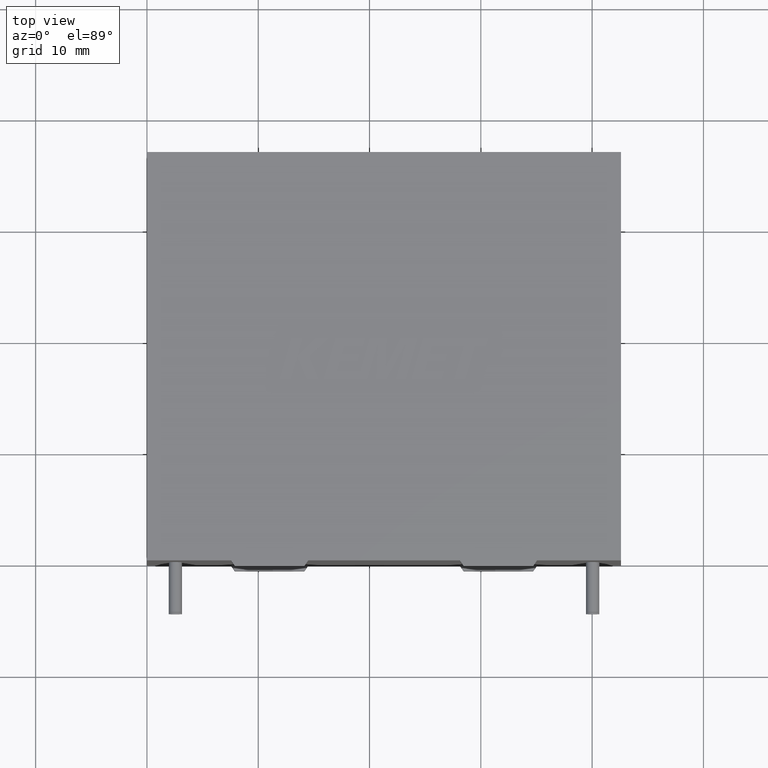
[diagram: clean part render]
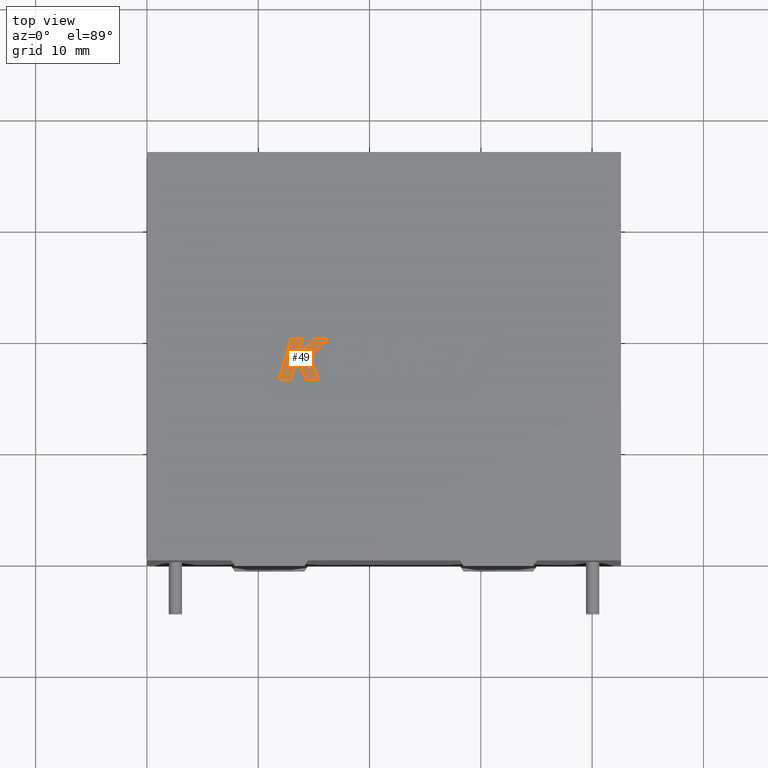
[diagram: same view with one face highlighted and labeled with its STEP entity id]
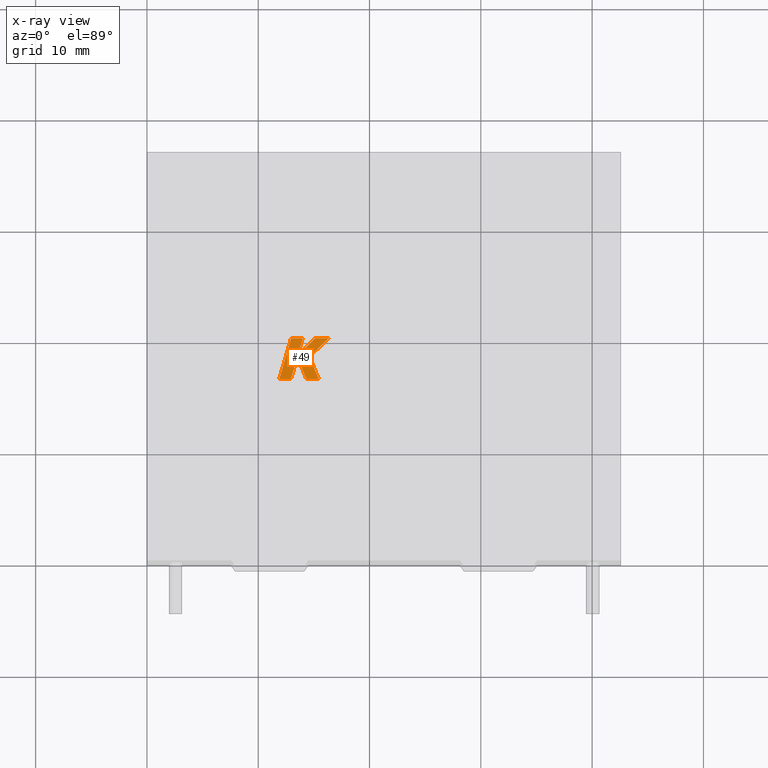
[diagram: x-ray of the same camera — body ghosted, the highlighted face saturated]
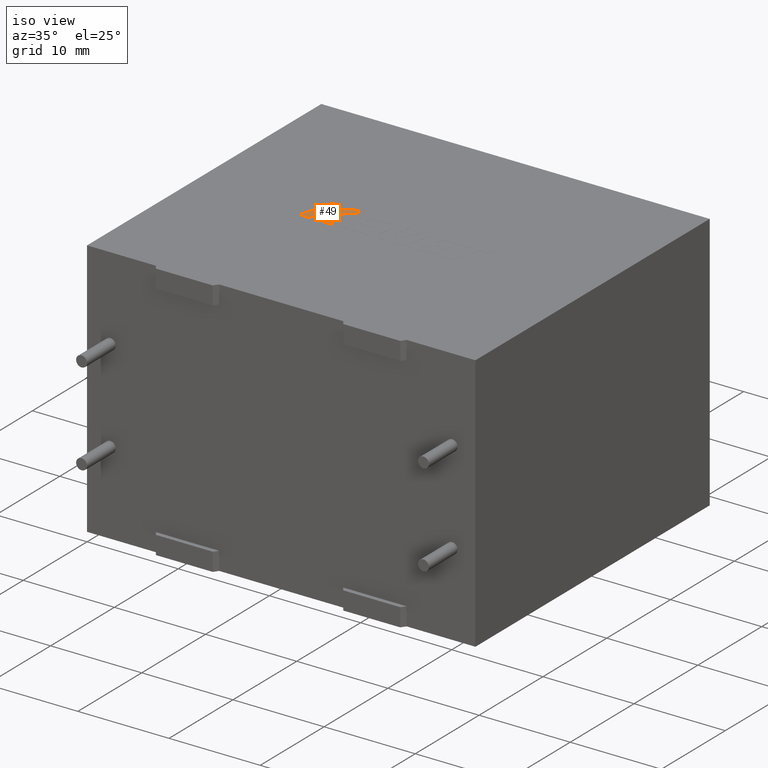
[diagram: same view with one face highlighted and labeled with its STEP entity id]
A machine part, top view. The second image highlights one B-rep face of the part: STEP entity #49.
The next image is the same camera in x-ray: the body ghosted, the highlighted face saturated — about 0% of this face is hidden behind the body in this view.
A second angle (iso view) of the same face is appended — the face is thin or edge-on in the first view.
In plain terms, the highlighted planar face has unit normal (0, 0, -1).
Its self-contained STEP definition (entity closure, byte-faithful):
#49 = ADVANCED_FACE ( 'NONE', ( #1874 ), #2974, .F. ) ;
#92 = VECTOR ( 'NONE', #2436, 1000.000000000000100 ) ;
#100 = ORIENTED_EDGE ( 'NONE', *, *, #203, .T. ) ;
#104 = LINE ( 'NONE', #2287, #3230 ) ;
#181 = CARTESIAN_POINT ( 'NONE',  ( 13.51438042692642400, 18.28540455250093900, 28.40500000000000100 ) ) ;
#189 = CARTESIAN_POINT ( 'NONE',  ( 14.60878642291253500, 18.28540455250098200, 28.40500000000000100 ) ) ;
#190 = DIRECTION ( 'NONE',  ( 1.000000000000000000, -1.065099224987545000E-013, 0.0000000000000000000 ) ) ;
#203 = EDGE_CURVE ( 'NONE', #1595, #1082, #1626, .T. ) ;
#224 = LINE ( 'NONE', #2475, #1966 ) ;
#264 = EDGE_CURVE ( 'NONE', #2233, #3308, #3332, .T. ) ;
#311 = EDGE_CURVE ( 'NONE', #2810, #2770, #1497, .T. ) ;
#355 = VECTOR ( 'NONE', #786, 1000.000000000000100 ) ;
#361 = CARTESIAN_POINT ( 'NONE',  ( 14.31708517982268500, 16.28562499999988600, 28.40500000000000100 ) ) ;
#382 = VERTEX_POINT ( 'NONE', #546 ) ;
#393 = EDGE_CURVE ( 'NONE', #1972, #1595, #1418, .T. ) ;
#421 = VECTOR ( 'NONE', #1534, 1000.000000000000000 ) ;
#436 = ORIENTED_EDGE ( 'NONE', *, *, #815, .T. ) ;
#546 = CARTESIAN_POINT ( 'NONE',  ( 11.89392000000000100, 16.28562500000000000, 28.40500000000000100 ) ) ;
#609 = VECTOR ( 'NONE', #1182, 1000.000000000000100 ) ;
#645 = VERTEX_POINT ( 'NONE', #189 ) ;
#668 = DIRECTION ( 'NONE',  ( -1.000000000000000000, 0.0000000000000000000, 0.0000000000000000000 ) ) ;
#673 = LINE ( 'NONE', #2052, #355 ) ;
#786 = DIRECTION ( 'NONE',  ( 0.2755265765475175500, 0.9612934544747533400, 0.0000000000000000000 ) ) ;
#789 = VECTOR ( 'NONE', #1299, 1000.000000000000000 ) ;
#815 = EDGE_CURVE ( 'NONE', #2770, #382, #1216, .T. ) ;
#910 = ORIENTED_EDGE ( 'NONE', *, *, #2782, .T. ) ;
#1002 = CARTESIAN_POINT ( 'NONE',  ( 12.95235607918623400, 19.96864435772087300, 28.40500000000000100 ) ) ;
#1004 = DIRECTION ( 'NONE',  ( 1.000000000000000000, 0.0000000000000000000, 0.0000000000000000000 ) ) ;
#1034 = EDGE_LOOP ( 'NONE', ( #436, #2776, #2653, #3218, #1137, #1431, #2944, #2787, #100, #910, #1970 ) ) ;
#1082 = VERTEX_POINT ( 'NONE', #3193 ) ;
#1116 = VERTEX_POINT ( 'NONE', #1331 ) ;
#1137 = ORIENTED_EDGE ( 'NONE', *, *, #2087, .T. ) ;
#1182 = DIRECTION ( 'NONE',  ( 0.2755520632520587800, 0.9612861490927315800, 0.0000000000000000000 ) ) ;
#1216 = LINE ( 'NONE', #1472, #1622 ) ;
#1221 = CARTESIAN_POINT ( 'NONE',  ( 14.31708517982268500, 16.28562499999988600, 28.40500000000000100 ) ) ;
#1226 = EDGE_CURVE ( 'NONE', #645, #1972, #2076, .T. ) ;
#1299 = DIRECTION ( 'NONE',  ( -1.000000000000000000, -0.0000000000000000000, -0.0000000000000000000 ) ) ;
#1331 = CARTESIAN_POINT ( 'NONE',  ( 12.94120226641205400, 16.28562499999988600, 28.40500000000000100 ) ) ;
#1418 = LINE ( 'NONE', #2070, #421 ) ;
#1431 = ORIENTED_EDGE ( 'NONE', *, *, #3220, .T. ) ;
#1472 = CARTESIAN_POINT ( 'NONE',  ( 11.89392000000000100, 16.28562500000000000, 28.40500000000000100 ) ) ;
#1497 = LINE ( 'NONE', #1002, #789 ) ;
#1531 = AXIS2_PLACEMENT_3D ( 'NONE', #3276, #1683, #668 ) ;
#1534 = DIRECTION ( 'NONE',  ( -1.000000000000000000, -0.0000000000000000000, -0.0000000000000000000 ) ) ;
#1595 = VERTEX_POINT ( 'NONE', #2072 ) ;
#1622 = VECTOR ( 'NONE', #2291, 1000.000000000000100 ) ;
#1626 = LINE ( 'NONE', #2503, #2302 ) ;
#1683 = DIRECTION ( 'NONE',  ( 0.0000000000000000000, 0.0000000000000000000, -1.000000000000000000 ) ) ;
#1685 = CARTESIAN_POINT ( 'NONE',  ( 12.95235607918623400, 19.96864435772087300, 28.40500000000000100 ) ) ;
#1744 = VERTEX_POINT ( 'NONE', #2001 ) ;
#1874 = FACE_OUTER_BOUND ( 'NONE', #1034, .T. ) ;
#1944 = CARTESIAN_POINT ( 'NONE',  ( 14.00103817408480300, 19.96864435772087300, 28.40500000000000100 ) ) ;
#1966 = VECTOR ( 'NONE', #190, 1000.000000000000000 ) ;
#1970 = ORIENTED_EDGE ( 'NONE', *, *, #311, .T. ) ;
#1972 = VERTEX_POINT ( 'NONE', #2904 ) ;
#2001 = CARTESIAN_POINT ( 'NONE',  ( 15.43770710832115300, 16.28562499999988600, 28.40500000000000100 ) ) ;
#2052 = CARTESIAN_POINT ( 'NONE',  ( 13.51438042692642400, 18.28540455250093900, 28.40500000000000100 ) ) ;
#2070 = CARTESIAN_POINT ( 'NONE',  ( 15.11608319767482000, 19.96864435772087300, 28.40500000000000100 ) ) ;
#2072 = CARTESIAN_POINT ( 'NONE',  ( 15.11608319767482000, 19.96864435772087300, 28.40500000000000100 ) ) ;
#2076 = LINE ( 'NONE', #2965, #92 ) ;
#2087 = EDGE_CURVE ( 'NONE', #3308, #1744, #104, .T. ) ;
#2175 = EDGE_CURVE ( 'NONE', #382, #1116, #224, .T. ) ;
#2233 = VERTEX_POINT ( 'NONE', #181 ) ;
#2287 = CARTESIAN_POINT ( 'NONE',  ( 15.43770710832115300, 16.28562499999988600, 28.40500000000000100 ) ) ;
#2291 = DIRECTION ( 'NONE',  ( -0.2762033010252011900, -0.9610992334315859900, -0.0000000000000000000 ) ) ;
#2302 = VECTOR ( 'NONE', #2781, 999.9999999999998900 ) ;
#2392 = VECTOR ( 'NONE', #2928, 1000.000000000000200 ) ;
#2436 = DIRECTION ( 'NONE',  ( 0.7145695586381828300, 0.6995643972270404500, 0.0000000000000000000 ) ) ;
#2475 = CARTESIAN_POINT ( 'NONE',  ( 12.94120226641205400, 16.28562499999988600, 28.40500000000000100 ) ) ;
#2503 = CARTESIAN_POINT ( 'NONE',  ( 13.55083188665642300, 18.39806251111178900, 28.40500000000000100 ) ) ;
#2652 = CARTESIAN_POINT ( 'NONE',  ( 14.60878642291253500, 18.28540455250098200, 28.40500000000000100 ) ) ;
#2653 = ORIENTED_EDGE ( 'NONE', *, *, #2986, .T. ) ;
#2665 = LINE ( 'NONE', #1944, #609 ) ;
#2770 = VERTEX_POINT ( 'NONE', #1685 ) ;
#2776 = ORIENTED_EDGE ( 'NONE', *, *, #2175, .T. ) ;
#2781 = DIRECTION ( 'NONE',  ( -0.7059037656364488500, -0.7083077534943984500, -0.0000000000000000000 ) ) ;
#2782 = EDGE_CURVE ( 'NONE', #1082, #2810, #2665, .T. ) ;
#2787 = ORIENTED_EDGE ( 'NONE', *, *, #393, .T. ) ;
#2810 = VERTEX_POINT ( 'NONE', #3286 ) ;
#2838 = VECTOR ( 'NONE', #3029, 1000.000000000000100 ) ;
#2904 = CARTESIAN_POINT ( 'NONE',  ( 16.32813053114027500, 19.96864435772087300, 28.40500000000000100 ) ) ;
#2928 = DIRECTION ( 'NONE',  ( -0.3829140317376945600, 0.9237839814038689700, 0.0000000000000000000 ) ) ;
#2944 = ORIENTED_EDGE ( 'NONE', *, *, #1226, .T. ) ;
#2965 = CARTESIAN_POINT ( 'NONE',  ( 16.32813053114027500, 19.96864435772087300, 28.40500000000000100 ) ) ;
#2974 = PLANE ( 'NONE',  #1531 ) ;
#2986 = EDGE_CURVE ( 'NONE', #1116, #2233, #673, .T. ) ;
#3029 = DIRECTION ( 'NONE',  ( 0.3725077383644743200, -0.9280290862136727500, 0.0000000000000000000 ) ) ;
#3080 = LINE ( 'NONE', #2652, #2392 ) ;
#3193 = CARTESIAN_POINT ( 'NONE',  ( 13.55083188665642300, 18.39806251111178900, 28.40500000000000100 ) ) ;
#3218 = ORIENTED_EDGE ( 'NONE', *, *, #264, .T. ) ;
#3220 = EDGE_CURVE ( 'NONE', #1744, #645, #3080, .T. ) ;
#3230 = VECTOR ( 'NONE', #1004, 1000.000000000000000 ) ;
#3276 = CARTESIAN_POINT ( 'NONE',  ( -0.2046702566905634300, 0.4081393718311475700, 28.40499999999999400 ) ) ;
#3286 = CARTESIAN_POINT ( 'NONE',  ( 14.00103817408480300, 19.96864435772087300, 28.40500000000000100 ) ) ;
#3308 = VERTEX_POINT ( 'NONE', #361 ) ;
#3332 = LINE ( 'NONE', #1221, #2838 ) ;